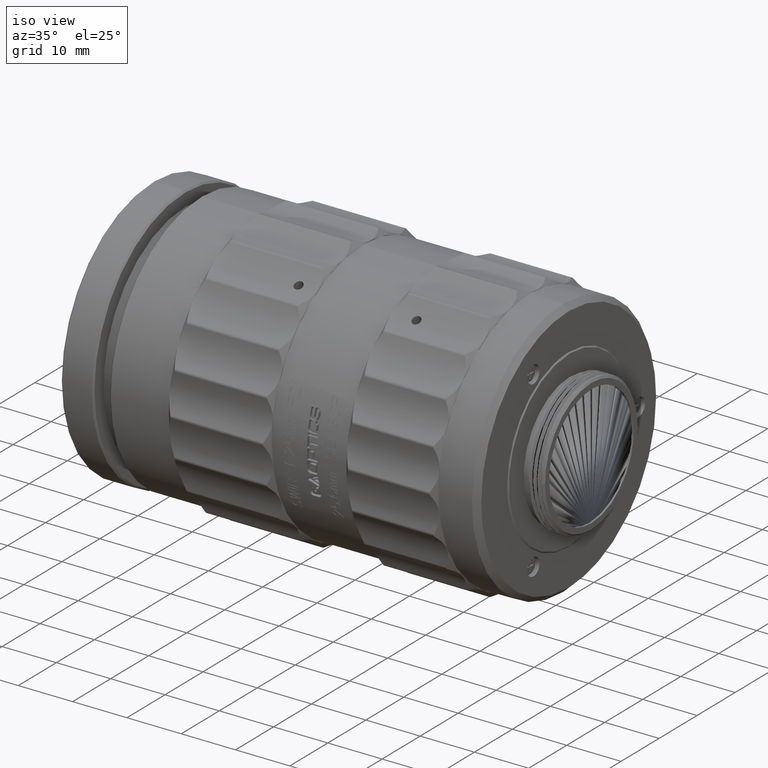
[diagram: clean part render]
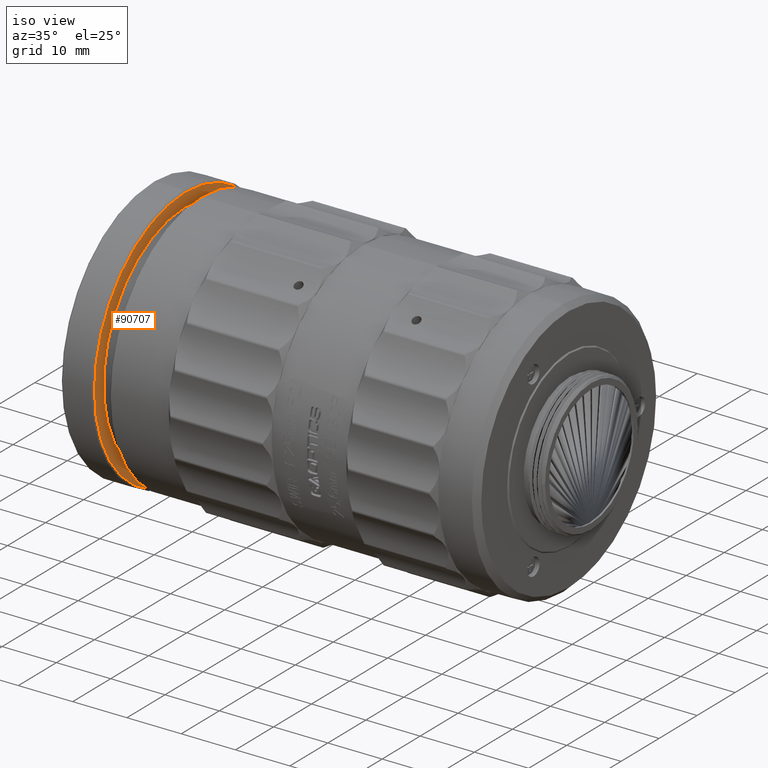
[diagram: same view with one face highlighted and labeled with its STEP entity id]
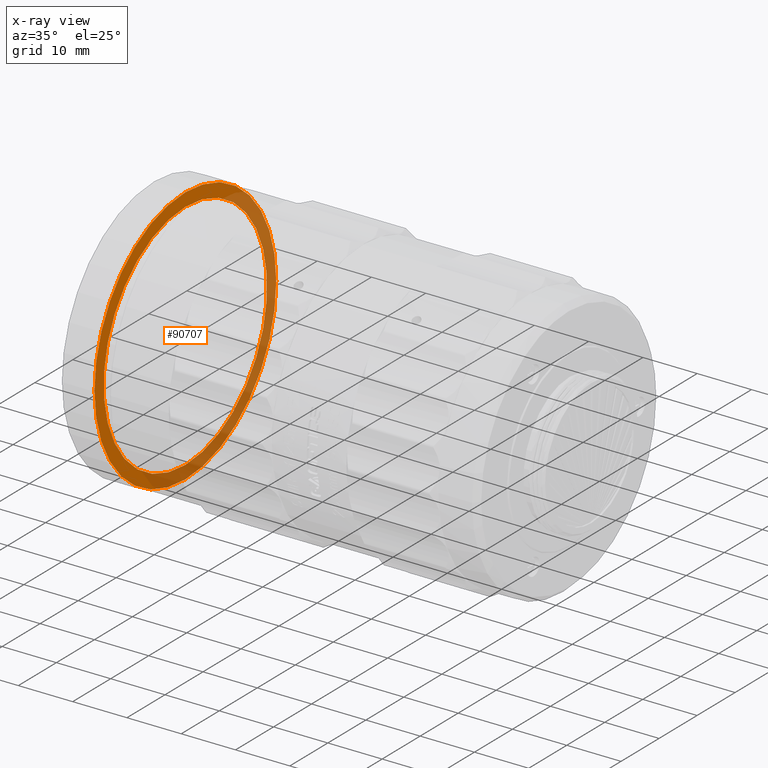
[diagram: x-ray of the same camera — body ghosted, the highlighted face saturated]
A machine part, iso view. The second image highlights one B-rep face of the part: STEP entity #90707.
The next image is the same camera in x-ray: the body ghosted, the highlighted face saturated — about 48% of this face is hidden behind the body in this view.
In plain terms, the highlighted planar face has unit normal (1, 0, 0).
Its self-contained STEP definition (entity closure, byte-faithful):
#3834 = VERTEX_POINT ( 'NONE', #77765 ) ;
#5841 = VERTEX_POINT ( 'NONE', #50872 ) ;
#9274 = VERTEX_POINT ( 'NONE', #32099 ) ;
#9544 = AXIS2_PLACEMENT_3D ( 'NONE', #67418, #35914, #29996 ) ;
#9836 = DIRECTION ( 'NONE',  ( 0.000000000000000000, 0.000000000000000000, 1.000000000000000000 ) ) ;
#10230 = CIRCLE ( 'NONE', #22832, 21.50000000000000000 ) ;
#12770 = FACE_OUTER_BOUND ( 'NONE', #93787, .T. ) ;
#15485 = DIRECTION ( 'NONE',  ( -1.000000000000000000, 0.000000000000000000, 0.000000000000000000 ) ) ;
#20703 = CIRCLE ( 'NONE', #45842, 21.50000000000000000 ) ;
#20705 = CARTESIAN_POINT ( 'NONE',  ( 1.750000000000000222, 0.000000000000000000, -21.50000000000000000 ) ) ;
#22687 = DIRECTION ( 'NONE',  ( -1.000000000000000000, 0.000000000000000000, 0.000000000000000000 ) ) ;
#22832 = AXIS2_PLACEMENT_3D ( 'NONE', #65927, #58557, #88624 ) ;
#28057 = ORIENTED_EDGE ( 'NONE', *, *, #53305, .T. ) ;
#29513 = CARTESIAN_POINT ( 'NONE',  ( 1.750000000000000222, 0.000000000000000000, 0.000000000000000000 ) ) ;
#29996 = DIRECTION ( 'NONE',  ( 0.000000000000000000, -1.000000000000000000, 0.000000000000000000 ) ) ;
#31037 = CARTESIAN_POINT ( 'NONE',  ( 1.749999999997332134, 0.000000000000000000, 0.000000000000000000 ) ) ;
#31913 = DIRECTION ( 'NONE',  ( 0.000000000000000000, 0.000000000000000000, -1.000000000000000000 ) ) ;
#32099 = CARTESIAN_POINT ( 'NONE',  ( 1.750000000000000222, 2.632990618166809630E-15, 21.50000000000000000 ) ) ;
#35914 = DIRECTION ( 'NONE',  ( 1.000000000000000000, 0.000000000000000000, 0.000000000000000000 ) ) ;
#37382 = DIRECTION ( 'NONE',  ( -1.000000000000000000, 0.000000000000000000, -0.000000000000000000 ) ) ;
#39312 = ORIENTED_EDGE ( 'NONE', *, *, #46157, .T. ) ;
#39688 = ORIENTED_EDGE ( 'NONE', *, *, #96602, .F. ) ;
#45842 = AXIS2_PLACEMENT_3D ( 'NONE', #29513, #37382, #31913 ) ;
#46157 = EDGE_CURVE ( 'NONE', #83934, #9274, #20703, .T. ) ;
#47447 = ORIENTED_EDGE ( 'NONE', *, *, #51895, .F. ) ;
#50872 = CARTESIAN_POINT ( 'NONE',  ( 1.749999999997332134, 2.945275551949384179E-15, -23.89999999999932712 ) ) ;
#51895 = EDGE_CURVE ( 'NONE', #5841, #3834, #63834, .T. ) ;
#51914 = DIRECTION ( 'NONE',  ( 0.000000000000000000, 0.000000000000000000, 1.000000000000000000 ) ) ;
#53305 = EDGE_CURVE ( 'NONE', #9274, #83934, #10230, .T. ) ;
#56127 = FACE_BOUND ( 'NONE', #86064, .T. ) ;
#58557 = DIRECTION ( 'NONE',  ( -1.000000000000000000, 0.000000000000000000, -0.000000000000000000 ) ) ;
#63834 = CIRCLE ( 'NONE', #84350, 23.89999999999932712 ) ;
#65927 = CARTESIAN_POINT ( 'NONE',  ( 1.750000000000000222, 0.000000000000000000, 0.000000000000000000 ) ) ;
#67418 = CARTESIAN_POINT ( 'NONE',  ( 1.750000000000000222, 24.85599999999999810, 24.85599999999999810 ) ) ;
#75796 = CIRCLE ( 'NONE', #89996, 23.89999999999932712 ) ;
#77765 = CARTESIAN_POINT ( 'NONE',  ( 1.749999999997332134, 0.000000000000000000, 23.89999999999932712 ) ) ;
#82968 = CARTESIAN_POINT ( 'NONE',  ( 1.749999999997332134, 0.000000000000000000, 0.000000000000000000 ) ) ;
#83934 = VERTEX_POINT ( 'NONE', #20705 ) ;
#84350 = AXIS2_PLACEMENT_3D ( 'NONE', #31037, #22687, #9836 ) ;
#86064 = EDGE_LOOP ( 'NONE', ( #39312, #28057 ) ) ;
#88624 = DIRECTION ( 'NONE',  ( 0.000000000000000000, 0.000000000000000000, -1.000000000000000000 ) ) ;
#89996 = AXIS2_PLACEMENT_3D ( 'NONE', #82968, #15485, #51914 ) ;
#90707 = ADVANCED_FACE ( 'NONE', ( #56127, #12770 ), #96976, .T. ) ;
#93787 = EDGE_LOOP ( 'NONE', ( #39688, #47447 ) ) ;
#96602 = EDGE_CURVE ( 'NONE', #3834, #5841, #75796, .T. ) ;
#96976 = PLANE ( 'NONE',  #9544 ) ;